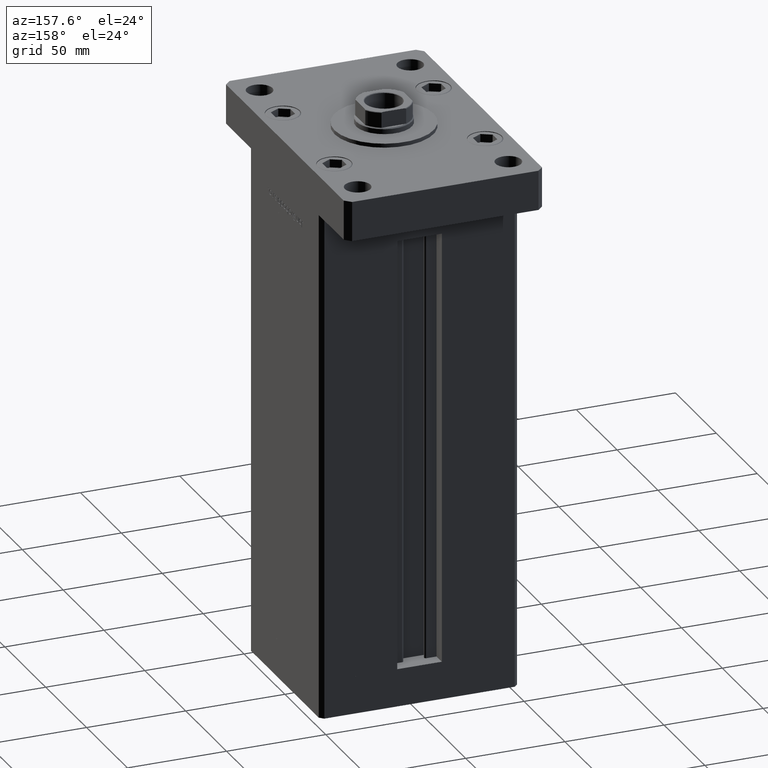
[diagram: clean part render]
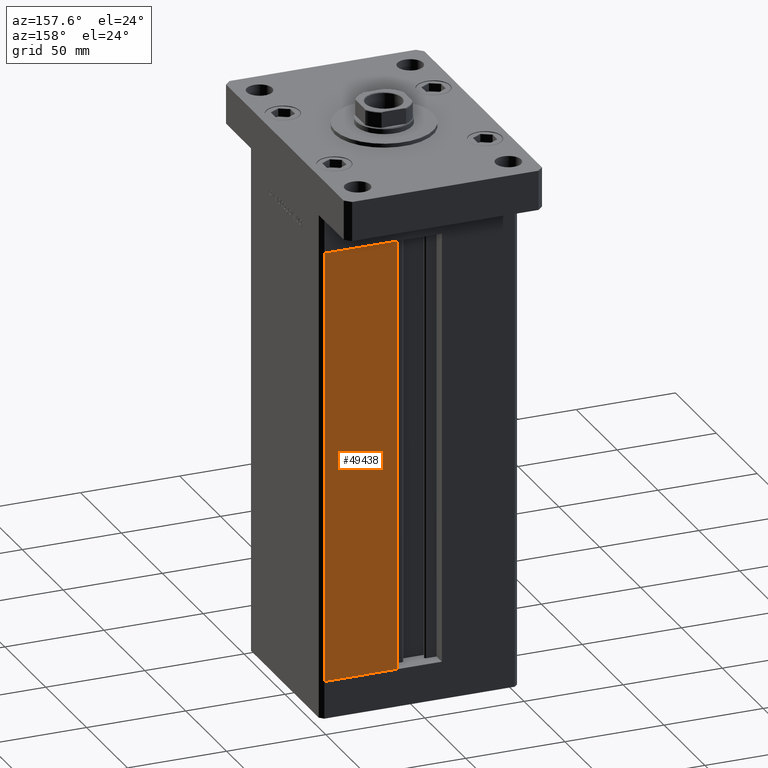
[diagram: same view with one face highlighted and labeled with its STEP entity id]
A machine part, auxiliary view. The second image highlights one B-rep face of the part: STEP entity #49438.
In plain terms, the highlighted planar face has unit normal (0, -1, 0).
Its self-contained STEP definition (entity closure, byte-faithful):
#794 = DIRECTION ( 'NONE',  ( 0.000000000000000000, -0.000000000000000000, -1.000000000000000000 ) ) ;
#1498 = ORIENTED_EDGE ( 'NONE', *, *, #39994, .T. ) ;
#4887 = PLANE ( 'NONE',  #5108 ) ;
#5108 = AXIS2_PLACEMENT_3D ( 'NONE', #21498, #34065, #794 ) ;
#7776 = DIRECTION ( 'NONE',  ( -0.000000000000000000, -0.000000000000000000, 1.000000000000000000 ) ) ;
#7862 = VERTEX_POINT ( 'NONE', #34482 ) ;
#10298 = VERTEX_POINT ( 'NONE', #39480 ) ;
#13357 = FACE_OUTER_BOUND ( 'NONE', #30480, .T. ) ;
#16390 = CARTESIAN_POINT ( 'NONE',  ( -11.24999999999999822, 43.50000000000000000, 218.5000000000000000 ) ) ;
#16631 = ORIENTED_EDGE ( 'NONE', *, *, #41201, .T. ) ;
#18266 = ORIENTED_EDGE ( 'NONE', *, *, #43490, .T. ) ;
#18691 = DIRECTION ( 'NONE',  ( -0.000000000000000000, -0.000000000000000000, -1.000000000000000000 ) ) ;
#19249 = VERTEX_POINT ( 'NONE', #38573 ) ;
#20208 = DIRECTION ( 'NONE',  ( 1.000000000000000000, 0.000000000000000000, 0.000000000000000000 ) ) ;
#20573 = VECTOR ( 'NONE', #18691, 1000.000000000000000 ) ;
#20793 = LINE ( 'NONE', #21068, #26626 ) ;
#21068 = CARTESIAN_POINT ( 'NONE',  ( -11.24999999999999822, 43.50000000000000000, 0.000000000000000000 ) ) ;
#21498 = CARTESIAN_POINT ( 'NONE',  ( -11.24999999999999822, 43.50000000000000000, 218.5000000000000000 ) ) ;
#26626 = VECTOR ( 'NONE', #37441, 1000.000000000000000 ) ;
#29029 = LINE ( 'NONE', #45129, #53603 ) ;
#30480 = EDGE_LOOP ( 'NONE', ( #16631, #1498, #49120, #18266 ) ) ;
#32023 = LINE ( 'NONE', #48642, #20573 ) ;
#32491 = LINE ( 'NONE', #16390, #43216 ) ;
#34065 = DIRECTION ( 'NONE',  ( 0.000000000000000000, -1.000000000000000000, 0.000000000000000000 ) ) ;
#34482 = CARTESIAN_POINT ( 'NONE',  ( 11.24999999999999822, 43.50000000000000000, 0.000000000000000000 ) ) ;
#37441 = DIRECTION ( 'NONE',  ( -1.000000000000000000, 0.000000000000000000, 0.000000000000000000 ) ) ;
#38573 = CARTESIAN_POINT ( 'NONE',  ( 11.24999999999999112, 43.50000000000000000, 218.5000000000000000 ) ) ;
#39480 = CARTESIAN_POINT ( 'NONE',  ( 48.00000000000000711, 43.50000000000000000, 218.5000000000000000 ) ) ;
#39994 = EDGE_CURVE ( 'NONE', #7862, #19249, #29029, .T. ) ;
#41201 = EDGE_CURVE ( 'NONE', #43019, #7862, #20793, .T. ) ;
#42256 = EDGE_CURVE ( 'NONE', #19249, #10298, #32491, .T. ) ;
#43019 = VERTEX_POINT ( 'NONE', #48571 ) ;
#43216 = VECTOR ( 'NONE', #20208, 1000.000000000000000 ) ;
#43490 = EDGE_CURVE ( 'NONE', #10298, #43019, #32023, .T. ) ;
#45129 = CARTESIAN_POINT ( 'NONE',  ( 11.24999999999999822, 43.50000000000000000, 0.000000000000000000 ) ) ;
#48571 = CARTESIAN_POINT ( 'NONE',  ( 48.00000000000000711, 43.50000000000000000, 0.000000000000000000 ) ) ;
#48642 = CARTESIAN_POINT ( 'NONE',  ( 48.00000000000000711, 43.50000000000000000, 218.5000000000000000 ) ) ;
#49120 = ORIENTED_EDGE ( 'NONE', *, *, #42256, .T. ) ;
#49438 = ADVANCED_FACE ( 'NONE', ( #13357 ), #4887, .F. ) ;
#53603 = VECTOR ( 'NONE', #7776, 1000.000000000000000 ) ;